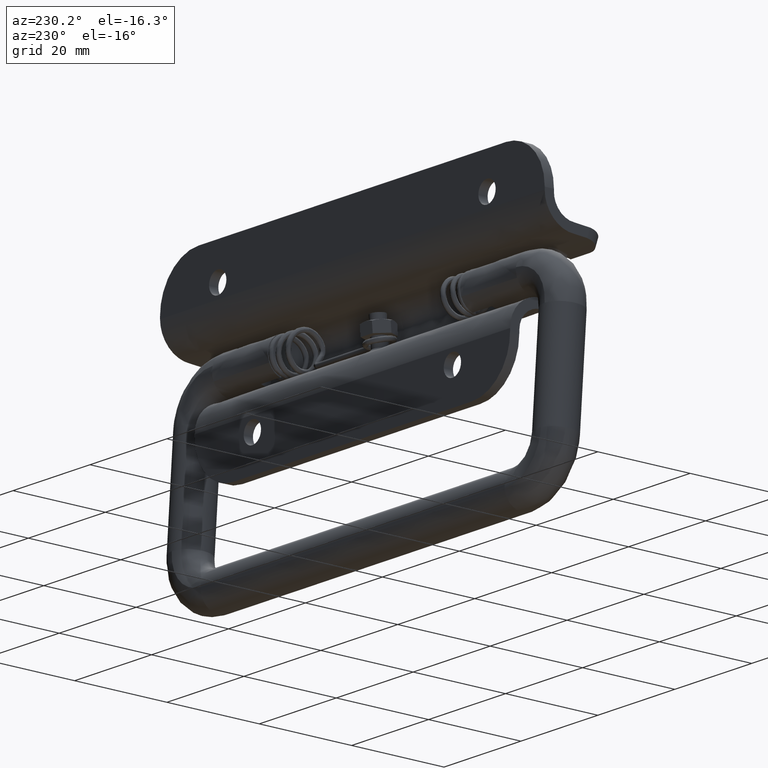
[diagram: clean part render]
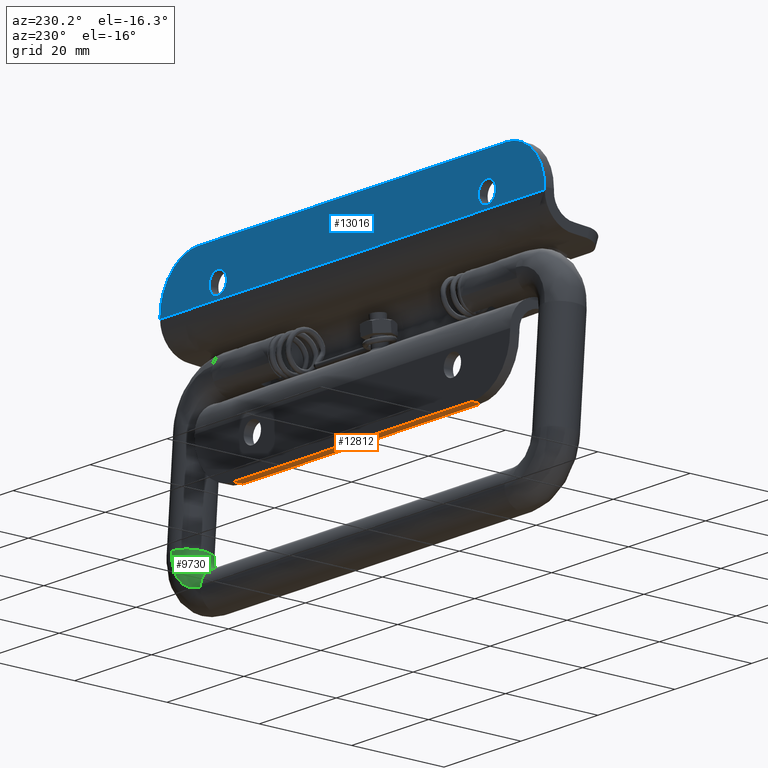
[diagram: same view with three faces highlighted in distinct colors, each labeled with its STEP entity id]
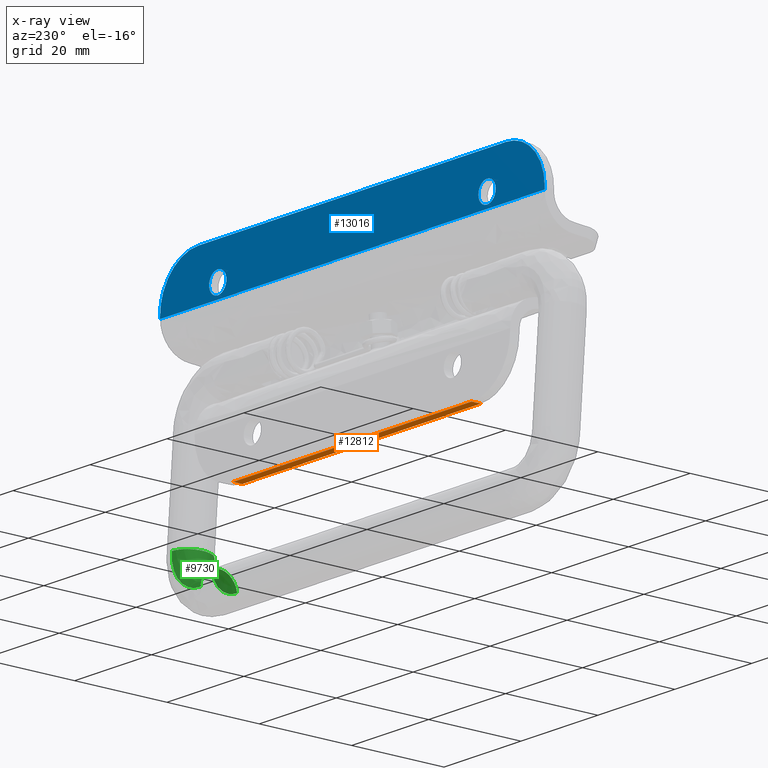
[diagram: x-ray of the same camera — body ghosted, the three highlighted faces saturated]
A machine part, auxiliary view with three faces highlighted in distinct colors.
The next image is the same camera in x-ray (body ghosted, the three faces saturated) — at least one of them is partly hidden behind the body in this view.
Their STEP definitions:

[orange] entity #12812 — the highlighted face is a freeform B-spline surface patch.
#12350=CARTESIAN_POINT('',(-31.0,6.500000000000000,-21.500000000000000));
#12351=VERTEX_POINT('',#12350);
#12368=CARTESIAN_POINT('',(-31.0,4.500000000000000,-21.500000000000000));
#12369=VERTEX_POINT('',#12368);
#12370=CARTESIAN_POINT('',(-31.0,4.500000000000000,-21.500000000000000));
#12371=CARTESIAN_POINT('',(-31.0,6.500000000000000,-21.500000000000000));
#12372=QUASI_UNIFORM_CURVE('',1,(#12370,#12371),.UNSPECIFIED.,.F.,.U.);
#12373=EDGE_CURVE('',#12369,#12351,#12372,.T.);
#12416=CARTESIAN_POINT('',(31.0,6.500000000000000,-21.500000000000000));
#12417=VERTEX_POINT('',#12416);
#12440=CARTESIAN_POINT('',(31.0,4.500000000000000,-21.500000000000000));
#12441=VERTEX_POINT('',#12440);
#12457=CARTESIAN_POINT('',(31.0,6.500000000000000,-21.500000000000000));
#12458=CARTESIAN_POINT('',(31.0,4.500000000000000,-21.500000000000000));
#12459=QUASI_UNIFORM_CURVE('',1,(#12457,#12458),.UNSPECIFIED.,.F.,.U.);
#12460=EDGE_CURVE('',#12417,#12441,#12459,.T.);
#12793=CARTESIAN_POINT('',(34.096899879831980,4.400100003876387,-21.500000000000000));
#12794=CARTESIAN_POINT('',(-34.096901542801561,4.400100003876387,-21.500000000000000));
#12795=CARTESIAN_POINT('',(34.096899879831980,6.599900049767793,-21.500000000000000));
#12796=CARTESIAN_POINT('',(-34.096901542801561,6.599900049767793,-21.500000000000000));
#12797=B_SPLINE_SURFACE_WITH_KNOTS('',1,1,((#12793,#12795),(#12794,#12796)),.UNSPECIFIED.,.F.,.F.,.U.,(2,2),(2,2),(0.0,68.193801422633541),(0.0,2.199800045891406),.UNSPECIFIED.);
#12798=CARTESIAN_POINT('',(31.0,6.500000000000000,-21.500000000000000));
#12799=CARTESIAN_POINT('',(-31.0,6.500000000000000,-21.500000000000000));
#12800=QUASI_UNIFORM_CURVE('',1,(#12798,#12799),.UNSPECIFIED.,.F.,.U.);
#12801=EDGE_CURVE('',#12417,#12351,#12800,.T.);
#12802=ORIENTED_EDGE('',*,*,#12801,.F.);
#12803=ORIENTED_EDGE('',*,*,#12460,.T.);
#12804=CARTESIAN_POINT('',(31.0,4.500000000000000,-21.500000000000000));
#12805=CARTESIAN_POINT('',(-31.0,4.500000000000000,-21.500000000000000));
#12806=QUASI_UNIFORM_CURVE('',1,(#12804,#12805),.UNSPECIFIED.,.F.,.U.);
#12807=EDGE_CURVE('',#12441,#12369,#12806,.T.);
#12808=ORIENTED_EDGE('',*,*,#12807,.T.);
#12809=ORIENTED_EDGE('',*,*,#12373,.T.);
#12810=EDGE_LOOP('',(#12802,#12803,#12808,#12809));
#12811=FACE_OUTER_BOUND('',#12810,.T.);
#12812=ADVANCED_FACE('',(#12811),#12797,.T.);

[blue] entity #13016 — the highlighted face is a freeform B-spline surface patch.
#10268=CARTESIAN_POINT('',(-37.249999999998977,6.500000000000000,13.999997851253701));
#10269=VERTEX_POINT('',#10268);
#10270=CARTESIAN_POINT('',(-36.604813806897262,6.499999999977687,12.422953690545830));
#10271=VERTEX_POINT('',#10270);
#10272=CARTESIAN_POINT('',(-37.249999999998977,6.500000000000000,13.999997851253701));
#10273=CARTESIAN_POINT('',(-37.250364583297817,6.499999999995612,13.690489796074379));
#10274=CARTESIAN_POINT('',(-37.127782910108749,6.499999999987398,13.108345913991901));
#10275=CARTESIAN_POINT('',(-36.796378487428811,6.499999999980424,12.617571179575110));
#10276=CARTESIAN_POINT('',(-36.604813806897262,6.499999999977687,12.422953690545830));
#10277=B_SPLINE_CURVE_WITH_KNOTS('',3,(#10272,#10273,#10274,#10275,#10276),.UNSPECIFIED.,.F.,.U.,(4,1,4),(0.000000053254912,0.928373834280422,1.747551979831418),.UNSPECIFIED.);
#10278=EDGE_CURVE('',#10269,#10271,#10277,.T.);
#10280=CARTESIAN_POINT('',(-35.0,6.500000000000000,16.250000000000000));
#10281=VERTEX_POINT('',#10280);
#10282=CARTESIAN_POINT('',(-35.0,6.500000000000000,16.250000000000000));
#10283=CARTESIAN_POINT('',(-35.165663422544633,6.500000000000000,16.250021545507138));
#10284=CARTESIAN_POINT('',(-35.515413397494562,6.500000000000007,16.211229864171941));
#10285=CARTESIAN_POINT('',(-35.986897391934242,6.499999999999994,16.042517304617469));
#10286=CARTESIAN_POINT('',(-36.424473766526788,6.500000000000011,15.765445651444150));
#10287=CARTESIAN_POINT('',(-36.765436125571462,6.499999999999983,15.424459345178850));
#10288=CARTESIAN_POINT('',(-37.022714662739268,6.500000000000041,15.018152748763370));
#10289=CARTESIAN_POINT('',(-37.202446617819348,6.499999999999949,14.552191058105430));
#10290=CARTESIAN_POINT('',(-37.250076081465977,6.500000000000055,14.202488877962439));
#10291=CARTESIAN_POINT('',(-37.249999999998977,6.500000000000000,13.999997851253701));
#10292=B_SPLINE_CURVE_WITH_KNOTS('',3,(#10282,#10283,#10284,#10285,#10286,#10287,#10288,#10289,#10290,#10291),.UNSPECIFIED.,.F.,.U.,(4,1,1,1,1,1,1,4),(0.000000155749071,0.497002490036952,1.049270988714094,1.491093769274116,2.043288648692378,2.485111981150826,2.926922866901140,3.534381635859738),.UNSPECIFIED.);
#10293=EDGE_CURVE('',#10281,#10269,#10292,.T.);
#10295=CARTESIAN_POINT('',(-32.750000000001023,6.500000000000000,14.000002148746310));
#10296=VERTEX_POINT('',#10295);
#10297=CARTESIAN_POINT('',(-32.750000000001023,6.500000000000000,14.000002148746310));
#10298=CARTESIAN_POINT('',(-32.749742244456911,6.500000000000003,14.276171816966560));
#10299=CARTESIAN_POINT('',(-32.815193663929321,6.499999999999999,14.625726465943091));
#10300=CARTESIAN_POINT('',(-33.046721137913032,6.499999999999990,15.148076192893249));
#10301=CARTESIAN_POINT('',(-33.368075753676663,6.500000000000036,15.604566524218511));
#10302=CARTESIAN_POINT('',(-33.908256935899772,6.499999999999907,16.005172203956519));
#10303=CARTESIAN_POINT('',(-34.484602417667112,6.500000000000115,16.211204364411909));
#10304=CARTESIAN_POINT('',(-34.834337569555352,6.499999999999882,16.250022233546758));
#10305=CARTESIAN_POINT('',(-35.0,6.500000000000000,16.250000000000000));
#10306=B_SPLINE_CURVE_WITH_KNOTS('',3,(#10297,#10298,#10299,#10300,#10301,#10302,#10303,#10304,#10305),.UNSPECIFIED.,.F.,.U.,(4,1,1,1,1,1,4),(0.000000158690603,0.828367330019639,1.049270271275451,1.711985019432973,2.485110277667932,3.037376489980546,3.534379213661419),.UNSPECIFIED.);
#10307=EDGE_CURVE('',#10296,#10281,#10306,.T.);
#10309=CARTESIAN_POINT('',(-33.422954440143400,6.500000000022554,12.395186962551440));
#10310=VERTEX_POINT('',#10309);
#10311=CARTESIAN_POINT('',(-33.422954440143400,6.500000000022554,12.395186962551440));
#10312=CARTESIAN_POINT('',(-33.196912762544301,6.500000000019427,12.616695165837140));
#10313=CARTESIAN_POINT('',(-32.862380371861839,6.500000000012307,13.125409772167210));
#10314=CARTESIAN_POINT('',(-32.749744089929742,6.500000000003919,13.720776667229840));
#10315=CARTESIAN_POINT('',(-32.750000000001023,6.500000000000000,14.000002148746310));
#10316=B_SPLINE_CURVE_WITH_KNOTS('',3,(#10311,#10312,#10313,#10314,#10315),.UNSPECIFIED.,.F.,.U.,(4,1,4),(0.000000041572078,0.949244018298996,1.786828467575215),.UNSPECIFIED.);
#10317=EDGE_CURVE('',#10310,#10296,#10316,.T.);
#10396=CARTESIAN_POINT('',(-35.0,6.500000000000000,11.750000000000000));
#10397=VERTEX_POINT('',#10396);
#10398=CARTESIAN_POINT('',(-36.604813806897262,6.499999999977687,12.422953690545830));
#10399=CARTESIAN_POINT('',(-36.435293799372197,6.499999999980051,12.250287065383709));
#10400=CARTESIAN_POINT('',(-36.085493245876648,6.499999999984893,11.993943587515419));
#10401=CARTESIAN_POINT('',(-35.521132746349132,6.499999999992771,11.789658271819860));
#10402=CARTESIAN_POINT('',(-35.167512067667822,6.499999999997665,11.749975116914881));
#10403=CARTESIAN_POINT('',(-35.0,6.500000000000000,11.750000000000000));
#10404=B_SPLINE_CURVE_WITH_KNOTS('',3,(#10398,#10399,#10400,#10401,#10402,#10403),.UNSPECIFIED.,.F.,.U.,(4,1,1,4),(0.000000041520062,0.725911725838444,1.284280824696558,1.786826749866274),.UNSPECIFIED.);
#10405=EDGE_CURVE('',#10271,#10397,#10404,.T.);
#10427=CARTESIAN_POINT('',(-35.0,6.500000000000000,11.750000000000000));
#10428=CARTESIAN_POINT('',(-34.799762865021293,6.500000000002866,11.749953852493620));
#10429=CARTESIAN_POINT('',(-34.381095042113493,6.500000000008858,11.806209351427770));
#10430=CARTESIAN_POINT('',(-33.841811489706579,6.500000000016544,12.042267714349940));
#10431=CARTESIAN_POINT('',(-33.539794569083760,6.500000000020891,12.280349384003850));
#10432=CARTESIAN_POINT('',(-33.422954440143400,6.500000000022554,12.395186962551440));
#10433=B_SPLINE_CURVE_WITH_KNOTS('',3,(#10427,#10428,#10429,#10430,#10431,#10432),.UNSPECIFIED.,.F.,.U.,(4,1,1,4),(0.000000053205931,0.600723739127184,1.256051204868407,1.747553716235217),.UNSPECIFIED.);
#10434=EDGE_CURVE('',#10397,#10310,#10433,.T.);
#10842=CARTESIAN_POINT('',(32.750000000001030,6.500000000000000,13.999997851253701));
#10843=VERTEX_POINT('',#10842);
#10844=CARTESIAN_POINT('',(33.395186193102752,6.499999999977687,12.422953690545830));
#10845=VERTEX_POINT('',#10844);
#10846=CARTESIAN_POINT('',(32.750000000001030,6.500000000000000,13.999997851253701));
#10847=CARTESIAN_POINT('',(32.749595434420058,6.499999999995615,13.690481200643260));
#10848=CARTESIAN_POINT('',(32.872263025189369,6.499999999987393,13.108357875335610));
#10849=CARTESIAN_POINT('',(33.203610489245840,6.499999999980439,12.617569422752659));
#10850=CARTESIAN_POINT('',(33.395186193102752,6.499999999977687,12.422953690545830));
#10851=B_SPLINE_CURVE_WITH_KNOTS('',3,(#10846,#10847,#10848,#10849,#10850),.UNSPECIFIED.,.F.,.U.,(4,1,4),(0.000000053253909,0.928373834280185,1.747551979831404),.UNSPECIFIED.);
#10852=EDGE_CURVE('',#10843,#10845,#10851,.T.);
#10854=CARTESIAN_POINT('',(35.0,6.500000000000000,16.250000000000000));
#10855=VERTEX_POINT('',#10854);
#10856=CARTESIAN_POINT('',(35.0,6.500000000000000,16.250000000000000));
#10857=CARTESIAN_POINT('',(34.760675951794141,6.499999999999997,16.250146730105779));
#10858=CARTESIAN_POINT('',(34.374217705038042,6.499999999999993,16.187697446697790));
#10859=CARTESIAN_POINT('',(33.849979031971600,6.500000000000001,15.955347071543020));
#10860=CARTESIAN_POINT('',(33.462696023177521,6.500000000000004,15.668068897036280));
#10861=CARTESIAN_POINT('',(33.075947134429150,6.500000000000034,15.219939013649650));
#10862=CARTESIAN_POINT('',(32.812403312133249,6.499999999999926,14.662713590736921));
#10863=CARTESIAN_POINT('',(32.749971458992320,6.500000000000058,14.202468903881639));
#10864=CARTESIAN_POINT('',(32.750000000001030,6.500000000000000,13.999997851253701));
#10865=B_SPLINE_CURVE_WITH_KNOTS('',3,(#10856,#10857,#10858,#10859,#10860,#10861,#10862,#10863,#10864),.UNSPECIFIED.,.F.,.U.,(4,1,1,1,1,1,4),(0.000000155745077,0.717919609051945,1.159732754800445,1.711986187062321,2.153760714997246,2.926922866900457,3.534381635859733),.UNSPECIFIED.);
#10866=EDGE_CURVE('',#10855,#10843,#10865,.T.);
#10868=CARTESIAN_POINT('',(37.249999999998977,6.500000000000001,14.000002148746299));
#10869=VERTEX_POINT('',#10868);
#10870=CARTESIAN_POINT('',(37.249999999998977,6.500000000000001,14.000002148746299));
#10871=CARTESIAN_POINT('',(37.250145664735250,6.500000000000005,14.239325847489891));
#10872=CARTESIAN_POINT('',(37.187699411513542,6.499999999999996,14.625785003248460));
#10873=CARTESIAN_POINT('',(36.955335911895773,6.500000000000002,15.150005953416191));
#10874=CARTESIAN_POINT('',(36.601862928683957,6.499999999999992,15.626809573129171));
#10875=CARTESIAN_POINT('',(36.121779222609867,6.500000000000033,15.982913237704290));
#10876=CARTESIAN_POINT('',(35.552180902704059,6.499999999999981,16.202429787575159));
#10877=CARTESIAN_POINT('',(35.202488728135883,6.499999999999996,16.250072690756632));
#10878=CARTESIAN_POINT('',(35.0,6.500000000000000,16.250000000000000));
#10879=B_SPLINE_CURVE_WITH_KNOTS('',3,(#10870,#10871,#10872,#10873,#10874,#10875,#10876,#10877,#10878),.UNSPECIFIED.,.F.,.U.,(4,1,1,1,1,1,4),(0.000000158690459,0.717919119734019,1.159731962199690,1.711985019432176,2.485110277667397,2.926920859590775,3.534379213661425),.UNSPECIFIED.);
#10880=EDGE_CURVE('',#10869,#10855,#10879,.T.);
#10882=CARTESIAN_POINT('',(36.577045559856600,6.500000000022554,12.395186962551429));
#10883=VERTEX_POINT('',#10882);
#10884=CARTESIAN_POINT('',(36.577045559856600,6.500000000022554,12.395186962551429));
#10885=CARTESIAN_POINT('',(36.803087816146579,6.500000000019450,12.616694654873100));
#10886=CARTESIAN_POINT('',(37.137617901837459,6.500000000012279,13.125410400969990));
#10887=CARTESIAN_POINT('',(37.250257348965341,6.500000000003938,13.720776142592170));
#10888=CARTESIAN_POINT('',(37.249999999998977,6.500000000000001,14.000002148746299));
#10889=B_SPLINE_CURVE_WITH_KNOTS('',3,(#10884,#10885,#10886,#10887,#10888),.UNSPECIFIED.,.F.,.U.,(4,1,4),(0.000000041572545,0.949244018299100,1.786828467575225),.UNSPECIFIED.);
#10890=EDGE_CURVE('',#10883,#10869,#10889,.T.);
#10970=CARTESIAN_POINT('',(35.0,6.500000000000000,11.750000000000000));
#10971=VERTEX_POINT('',#10970);
#10972=CARTESIAN_POINT('',(33.395186193102752,6.499999999977687,12.422953690545830));
#10973=CARTESIAN_POINT('',(33.590715947046967,6.499999999980419,12.223617336752151));
#10974=CARTESIAN_POINT('',(34.088350935237571,6.499999999987312,11.877919355837340));
#10975=CARTESIAN_POINT('',(34.683518666178692,6.499999999995604,11.749556286572631));
#10976=CARTESIAN_POINT('',(35.0,6.500000000000000,11.750000000000000));
#10977=B_SPLINE_CURVE_WITH_KNOTS('',3,(#10972,#10973,#10974,#10975,#10976),.UNSPECIFIED.,.F.,.U.,(4,1,4),(0.000000041519101,0.837583685615938,1.786826749866270),.UNSPECIFIED.);
#10978=EDGE_CURVE('',#10845,#10971,#10977,.T.);
#11001=CARTESIAN_POINT('',(35.0,6.500000000000000,11.750000000000000));
#11002=CARTESIAN_POINT('',(35.273081708872311,6.500000000003904,11.749773873036959));
#11003=CARTESIAN_POINT('',(35.855409123602932,6.500000000012249,11.857393869694301));
#11004=CARTESIAN_POINT('',(36.356545880138242,6.500000000019393,12.177985900697569));
#11005=CARTESIAN_POINT('',(36.577045559856600,6.500000000022554,12.395186962551429));
#11006=B_SPLINE_CURVE_WITH_KNOTS('',3,(#11001,#11002,#11003,#11004,#11005),.UNSPECIFIED.,.F.,.U.,(4,1,4),(0.000000053204332,0.819179012763056,1.747553716235217),.UNSPECIFIED.);
#11007=EDGE_CURVE('',#10971,#10883,#11006,.T.);
#12219=CARTESIAN_POINT('',(40.0,6.500000000000000,21.500000000000000));
#12220=VERTEX_POINT('',#12219);
#12221=CARTESIAN_POINT('',(50.0,6.500000000000000,11.500000000000000));
#12222=VERTEX_POINT('',#12221);
#12223=CARTESIAN_POINT('',(40.0,6.500000000000000,21.500000000000000));
#12224=CARTESIAN_POINT('',(40.654503624958792,6.500000000000003,21.500079601876159));
#12225=CARTESIAN_POINT('',(41.718024485775437,6.499999999999988,21.395192323451919));
#12226=CARTESIAN_POINT('',(43.382504832958347,6.500000000000025,20.956525636159881));
#12227=CARTESIAN_POINT('',(44.848021248493268,6.499999999999959,20.306929841318212));
#12228=CARTESIAN_POINT('',(46.241166629868658,6.500000000000020,19.363563112960570));
#12229=CARTESIAN_POINT('',(47.292951857014657,6.499999999999973,18.386500839417970));
#12230=CARTESIAN_POINT('',(48.176934473212881,6.500000000000022,17.309362310777018));
#12231=CARTESIAN_POINT('',(48.865493888330697,6.499999999999984,16.191911751001129));
#12232=CARTESIAN_POINT('',(49.463413437566189,6.500000000000043,14.843075749757711));
#12233=CARTESIAN_POINT('',(49.890484635816257,6.499999999999883,13.299848019285720));
#12234=CARTESIAN_POINT('',(50.000060743327332,6.500000000000129,12.113589199612511));
#12235=CARTESIAN_POINT('',(50.0,6.500000000000000,11.500000000000000));
#12236=B_SPLINE_CURVE_WITH_KNOTS('',3,(#12223,#12224,#12225,#12226,#12227,#12228,#12229,#12230,#12231,#12232,#12233,#12234,#12235),.UNSPECIFIED.,.F.,.U.,(4,1,1,1,1,1,1,1,1,1,4),(0.000000061683011,1.963505245201617,3.190692648377235,5.154222782670374,6.749561106441503,8.222151530387238,9.449351898033669,10.922009436796300,12.149208541477289,13.867293490295550,15.708061828752410),.UNSPECIFIED.);
#12237=EDGE_CURVE('',#12220,#12222,#12236,.T.);
#12285=CARTESIAN_POINT('',(-50.0,6.500000000000000,11.500000000000000));
#12286=VERTEX_POINT('',#12285);
#12287=CARTESIAN_POINT('',(-40.0,6.500000000000000,21.500000000000000));
#12288=VERTEX_POINT('',#12287);
#12289=CARTESIAN_POINT('',(-50.0,6.500000000000000,11.500000000000000));
#12290=CARTESIAN_POINT('',(-50.000081128188441,6.499999999999998,12.154504172311340));
#12291=CARTESIAN_POINT('',(-49.895189538891159,6.500000000000004,13.218023418916029));
#12292=CARTESIAN_POINT('',(-49.456527432929931,6.500000000000021,14.882505434823891));
#12293=CARTESIAN_POINT('',(-48.806929338773358,6.499999999999960,16.348021074249878));
#12294=CARTESIAN_POINT('',(-47.863560548517107,6.500000000000028,17.741164338558750));
#12295=CARTESIAN_POINT('',(-46.774842422556077,6.499999999999958,18.913177801453902));
#12296=CARTESIAN_POINT('',(-45.350718228696202,6.500000000000072,20.024682706352628));
#12297=CARTESIAN_POINT('',(-43.659693851266233,6.499999999999943,20.875927766997741));
#12298=CARTESIAN_POINT('',(-41.799835733737368,6.500000000000013,21.390459073517128));
#12299=CARTESIAN_POINT('',(-40.613589624257251,6.499999999999987,21.500061672829769));
#12300=CARTESIAN_POINT('',(-40.0,6.500000000000000,21.500000000000000));
#12301=B_SPLINE_CURVE_WITH_KNOTS('',3,(#12289,#12290,#12291,#12292,#12293,#12294,#12295,#12296,#12297,#12298,#12299,#12300),.UNSPECIFIED.,.F.,.U.,(4,1,1,1,1,1,1,1,1,4),(0.000000061683398,1.963505245203306,3.190692648379130,5.154222782672232,6.749561106442920,8.222151530388377,9.940256937007222,12.149208541478091,13.867293490296211,15.708061828752280),.UNSPECIFIED.);
#12302=EDGE_CURVE('',#12286,#12288,#12301,.T.);
#12525=CARTESIAN_POINT('',(-50.0,6.499999999986300,10.999999999999799));
#12526=VERTEX_POINT('',#12525);
#12527=CARTESIAN_POINT('',(-50.0,6.499999999986300,10.999999999999799));
#12528=CARTESIAN_POINT('',(-50.0,6.500000000000000,11.500000000000000));
#12529=QUASI_UNIFORM_CURVE('',1,(#12527,#12528),.UNSPECIFIED.,.F.,.U.);
#12530=EDGE_CURVE('',#12526,#12286,#12529,.T.);
#12653=CARTESIAN_POINT('',(50.0,6.499999999986300,10.999999999999799));
#12654=VERTEX_POINT('',#12653);
#12669=CARTESIAN_POINT('',(50.0,6.499999999986300,10.999999999999799));
#12670=CARTESIAN_POINT('',(50.0,6.500000000000000,11.500000000000000));
#12671=QUASI_UNIFORM_CURVE('',1,(#12669,#12670),.UNSPECIFIED.,.F.,.U.);
#12672=EDGE_CURVE('',#12654,#12222,#12671,.T.);
#12834=CARTESIAN_POINT('',(50.0,6.499999999986300,10.999999999999799));
#12835=CARTESIAN_POINT('',(-50.0,6.499999999986300,10.999999999999799));
#12836=QUASI_UNIFORM_CURVE('',1,(#12834,#12835),.UNSPECIFIED.,.F.,.U.);
#12837=EDGE_CURVE('',#12654,#12526,#12836,.T.);
#12849=CARTESIAN_POINT('',(40.0,6.500000000000000,21.500000000000000));
#12850=CARTESIAN_POINT('',(-40.0,6.500000000000000,21.500000000000000));
#12851=QUASI_UNIFORM_CURVE('',1,(#12849,#12850),.UNSPECIFIED.,.F.,.U.);
#12852=EDGE_CURVE('',#12220,#12288,#12851,.T.);
#12987=CARTESIAN_POINT('',(-54.994999806180601,6.500000000000000,10.475525020350830));
#12988=CARTESIAN_POINT('',(-54.994999806180601,6.500000000000000,22.024475261280919));
#12989=CARTESIAN_POINT('',(54.995002488389623,6.500000000000000,10.475525020350830));
#12990=CARTESIAN_POINT('',(54.995002488389623,6.500000000000000,22.024475261280919));
#12991=B_SPLINE_SURFACE_WITH_KNOTS('',1,1,((#12987,#12989),(#12988,#12990)),.UNSPECIFIED.,.F.,.F.,.U.,(2,2),(2,2),(0.0,11.548950240930090),(0.0,109.990002294570200),.UNSPECIFIED.);
#12992=ORIENTED_EDGE('',*,*,#12530,.T.);
#12993=ORIENTED_EDGE('',*,*,#12302,.T.);
#12994=ORIENTED_EDGE('',*,*,#12852,.F.);
#12995=ORIENTED_EDGE('',*,*,#12237,.T.);
#12996=ORIENTED_EDGE('',*,*,#12672,.F.);
#12997=ORIENTED_EDGE('',*,*,#12837,.T.);
#12998=EDGE_LOOP('',(#12992,#12993,#12994,#12995,#12996,#12997));
#12999=FACE_OUTER_BOUND('',#12998,.T.);
#13000=ORIENTED_EDGE('',*,*,#10866,.T.);
#13001=ORIENTED_EDGE('',*,*,#10852,.T.);
#13002=ORIENTED_EDGE('',*,*,#10978,.T.);
#13003=ORIENTED_EDGE('',*,*,#11007,.T.);
#13004=ORIENTED_EDGE('',*,*,#10890,.T.);
#13005=ORIENTED_EDGE('',*,*,#10880,.T.);
#13006=EDGE_LOOP('',(#13000,#13001,#13002,#13003,#13004,#13005));
#13007=FACE_BOUND('',#13006,.T.);
#13008=ORIENTED_EDGE('',*,*,#10293,.T.);
#13009=ORIENTED_EDGE('',*,*,#10278,.T.);
#13010=ORIENTED_EDGE('',*,*,#10405,.T.);
#13011=ORIENTED_EDGE('',*,*,#10434,.T.);
#13012=ORIENTED_EDGE('',*,*,#10317,.T.);
#13013=ORIENTED_EDGE('',*,*,#10307,.T.);
#13014=EDGE_LOOP('',(#13008,#13009,#13010,#13011,#13012,#13013));
#13015=FACE_BOUND('',#13014,.T.);
#13016=ADVANCED_FACE('',(#12999,#13007,#13015),#12991,.T.);

[green] entity #9730 — the highlighted face is a freeform B-spline surface patch.
#8564=CARTESIAN_POINT('',(39.500000000285127,-1.463747502757801,-37.380401269643912));
#8565=VERTEX_POINT('',#8564);
#8576=CARTESIAN_POINT('',(39.500000000001499,1.974826369065598,-33.952326085727137));
#8577=VERTEX_POINT('',#8576);
#8578=CARTESIAN_POINT('',(39.500000000001499,1.974826369065598,-33.952326085727137));
#8579=CARTESIAN_POINT('',(39.500000000001457,1.705434928583299,-33.987983092491568));
#8580=CARTESIAN_POINT('',(39.500000000007667,1.094182925491085,-34.133370011822883));
#8581=CARTESIAN_POINT('',(39.500000000034667,0.335740682669817,-34.516686724909761));
#8582=CARTESIAN_POINT('',(39.500000000077101,-0.320412331408411,-35.049521219535762));
#8583=CARTESIAN_POINT('',(39.500000000122981,-0.780863851355571,-35.590234361477002));
#8584=CARTESIAN_POINT('',(39.500000000191662,-1.229508060716558,-36.370173657312478));
#8585=CARTESIAN_POINT('',(39.500000000247347,-1.409203222509885,-36.976412579746643));
#8586=CARTESIAN_POINT('',(39.500000000285127,-1.463747502757801,-37.380401269643912));
#8587=B_SPLINE_CURVE_WITH_KNOTS('',3,(#8578,#8579,#8580,#8581,#8582,#8583,#8584,#8585,#8586),.UNSPECIFIED.,.F.,.U.,(4,1,1,1,1,1,4),(0.000000047183135,0.815247254279534,1.875110645062605,2.527305620127557,3.342540905817488,3.994764947798152,5.217651537397158),.UNSPECIFIED.);
#8588=EDGE_CURVE('',#8577,#8565,#8587,.T.);
#8590=CARTESIAN_POINT('',(39.500000000027349,5.276406435443406,-35.038190002778883));
#8591=VERTEX_POINT('',#8590);
#8592=CARTESIAN_POINT('',(39.500000000027349,5.276406435443406,-35.038190002778883));
#8593=CARTESIAN_POINT('',(39.500000000008477,5.033817096953167,-34.804159037229176));
#8594=CARTESIAN_POINT('',(39.499999999983160,4.564646461900410,-34.454468152188227));
#8595=CARTESIAN_POINT('',(39.499999999968558,3.878792532853526,-34.145691160290987));
#8596=CARTESIAN_POINT('',(39.499999999967180,3.046621934884933,-33.916568548467659));
#8597=CARTESIAN_POINT('',(39.499999999982137,2.420374948979677,-33.892987932353037));
#8598=CARTESIAN_POINT('',(39.500000000001499,1.974826369065598,-33.952326085727137));
#8599=B_SPLINE_CURVE_WITH_KNOTS('',3,(#8592,#8593,#8594,#8595,#8596,#8597,#8598),.UNSPECIFIED.,.F.,.U.,(4,1,1,1,4),(0.000000048344292,1.011211280485917,1.741546611944227,2.247120044926416,3.595407769198824),.UNSPECIFIED.);
#8600=EDGE_CURVE('',#8591,#8577,#8599,.T.);
#8690=CARTESIAN_POINT('',(39.500000000292630,6.496688691375723,-37.754927798345683));
#8691=VERTEX_POINT('',#8690);
#8692=CARTESIAN_POINT('',(39.500000000292630,6.496688691375723,-37.754927798345683));
#8693=CARTESIAN_POINT('',(39.500000000261331,6.485098454023584,-37.469061559905398));
#8694=CARTESIAN_POINT('',(39.500000000206043,6.407204816310738,-36.947336016508856));
#8695=CARTESIAN_POINT('',(39.500000000109623,6.062271881423480,-35.985995444406697));
#8696=CARTESIAN_POINT('',(39.500000000055010,5.631457040280438,-35.379940479423119));
#8697=CARTESIAN_POINT('',(39.500000000027349,5.276406435443406,-35.038190002778883));
#8698=B_SPLINE_CURVE_WITH_KNOTS('',3,(#8692,#8693,#8694,#8695,#8696,#8697),.UNSPECIFIED.,.F.,.U.,(4,1,1,4),(0.000000031099610,0.858293476481284,1.573515353583697,3.051704177177531),.UNSPECIFIED.);
#8699=EDGE_CURVE('',#8691,#8591,#8698,.T.);
#8747=CARTESIAN_POINT('',(47.600520381354237,5.963759668500638,-29.671956988336468));
#8748=VERTEX_POINT('',#8747);
#8749=CARTESIAN_POINT('',(44.809386595065540,4.927104652739009,-29.740306059125690));
#8750=VERTEX_POINT('',#8749);
#8751=CARTESIAN_POINT('',(47.600520381354237,5.963759668500638,-29.671956988336468));
#8752=CARTESIAN_POINT('',(47.282732349829573,5.971795566546348,-29.671427162921351));
#8753=CARTESIAN_POINT('',(46.661218955647279,5.913183504705609,-29.675291592157251));
#8754=CARTESIAN_POINT('',(45.691526731218381,5.585550711568540,-29.696893182491671));
#8755=CARTESIAN_POINT('',(45.103302913295508,5.193958054618054,-29.722711795083860));
#8756=CARTESIAN_POINT('',(44.809386595065540,4.927104652739009,-29.740306059125690));
#8757=B_SPLINE_CURVE_WITH_KNOTS('',3,(#8751,#8752,#8753,#8754,#8755,#8756),.UNSPECIFIED.,.F.,.U.,(4,1,1,4),(0.000000031099294,0.953659173011178,1.859629749571366,3.051704176479266),.UNSPECIFIED.);
#8758=EDGE_CURVE('',#8748,#8750,#8757,.T.);
#8857=CARTESIAN_POINT('',(43.508665939218972,1.711098321812476,-29.952344819600551));
#8858=VERTEX_POINT('',#8857);
#8859=CARTESIAN_POINT('',(44.809386595065540,4.927104652739009,-29.740306059125690));
#8860=CARTESIAN_POINT('',(44.587645400519740,4.726040670320055,-29.753562674072580));
#8861=CARTESIAN_POINT('',(44.202211272167837,4.288004843520477,-29.782443392635301));
#8862=CARTESIAN_POINT('',(43.811942670629257,3.580120828498605,-29.829115828461291));
#8863=CARTESIAN_POINT('',(43.533832418539077,2.723857808611246,-29.885571236411739));
#8864=CARTESIAN_POINT('',(43.482636810686863,2.102653728432934,-29.926528662991760));
#8865=CARTESIAN_POINT('',(43.508665939218972,1.711098321812476,-29.952344819600551));
#8866=B_SPLINE_CURVE_WITH_KNOTS('',3,(#8859,#8860,#8861,#8862,#8863,#8864,#8865),.UNSPECIFIED.,.F.,.U.,(4,1,1,1,4),(0.000000048346730,0.898852605045588,1.741546611944928,2.415659148330752,3.595407769197546),.UNSPECIFIED.);
#8867=EDGE_CURVE('',#8750,#8858,#8866,.T.);
#8869=CARTESIAN_POINT('',(46.703092298683721,-1.937635198812671,-30.192914287953439));
#8870=VERTEX_POINT('',#8869);
#8871=CARTESIAN_POINT('',(43.508665939218972,1.711098321812476,-29.952344819600551));
#8872=CARTESIAN_POINT('',(43.540415075898693,1.223955615414663,-29.984463268699820));
#8873=CARTESIAN_POINT('',(43.725154188421833,0.502746087308894,-30.032014286533538));
#8874=CARTESIAN_POINT('',(44.258119423028702,-0.416539327951784,-30.092624907271770));
#8875=CARTESIAN_POINT('',(44.792538423803322,-1.002417565084476,-30.131253219049121));
#8876=CARTESIAN_POINT('',(45.608553021457467,-1.594335864051801,-30.170279766126431));
#8877=CARTESIAN_POINT('',(46.250244972797567,-1.846144439326353,-30.186882089856709));
#8878=CARTESIAN_POINT('',(46.703092298683721,-1.937635198812671,-30.192914287953439));
#8879=B_SPLINE_CURVE_WITH_KNOTS('',3,(#8871,#8872,#8873,#8874,#8875,#8876,#8877,#8878),.UNSPECIFIED.,.F.,.U.,(4,1,1,1,1,4),(0.000000047185138,1.467468026392293,2.201215877469967,3.179485444375838,3.831712389807876,5.217651537562101),.UNSPECIFIED.);
#8880=EDGE_CURVE('',#8858,#8870,#8879,.T.);
#9657=CARTESIAN_POINT('',(47.600520381354237,5.963759668500638,-29.671956988336468));
#9658=CARTESIAN_POINT('',(47.600547573400043,5.994279715977974,-30.134856628390938));
#9659=CARTESIAN_POINT('',(47.512083145156588,6.061859390244737,-31.159842153609990));
#9660=CARTESIAN_POINT('',(47.076176073396020,6.163087047357870,-32.695168927818990));
#9661=CARTESIAN_POINT('',(46.253364430800808,6.265874993185516,-34.254160707321702));
#9662=CARTESIAN_POINT('',(45.214857908532771,6.346068484756259,-35.470460859292110));
#9663=CARTESIAN_POINT('',(43.995576737599052,6.410263315144554,-36.444108226799912));
#9664=CARTESIAN_POINT('',(42.857962574085860,6.451457350105510,-37.068900962532389));
#9665=CARTESIAN_POINT('',(41.322355349376629,6.486906819362547,-37.606565478761311));
#9666=CARTESIAN_POINT('',(40.229027467273362,6.496706857299805,-37.755203322108180));
#9667=CARTESIAN_POINT('',(39.500000000292630,6.496688691375723,-37.754927798345683));
#9668=B_SPLINE_CURVE_WITH_KNOTS('',3,(#9657,#9658,#9659,#9660,#9661,#9662,#9663,#9664,#9665,#9666,#9667),.UNSPECIFIED.,.F.,.U.,(4,1,1,1,1,1,1,1,4),(0.000000091617739,1.391721125525720,3.081676911349945,4.771633896631184,6.660359548880725,7.853300759888584,9.443850199146510,10.537364768497500,12.724347500563949),.UNSPECIFIED.);
#9669=EDGE_CURVE('',#8748,#8691,#9668,.T.);
#9674=CARTESIAN_POINT('',(46.703092298683721,-1.937635198812671,-30.192914287953439));
#9675=CARTESIAN_POINT('',(46.703378812552813,-1.891109004051446,-30.898580254716119));
#9676=CARTESIAN_POINT('',(46.532465535244548,-1.815520644136189,-32.045034060983227));
#9677=CARTESIAN_POINT('',(45.941105463570622,-1.719957727736905,-33.494443326710403));
#9678=CARTESIAN_POINT('',(45.324022897688948,-1.655850501351696,-34.466761998247883));
#9679=CARTESIAN_POINT('',(44.572027695734853,-1.598496547604122,-35.336653323437687));
#9680=CARTESIAN_POINT('',(43.783708325398003,-1.554310711643775,-36.006822908723009));
#9681=CARTESIAN_POINT('',(42.753267348972543,-1.512539476283433,-36.640370082135767));
#9682=CARTESIAN_POINT('',(41.385624656653007,-1.475260391771203,-37.205784497469757));
#9683=CARTESIAN_POINT('',(40.207192619462283,-1.463727814556388,-37.380699881977797));
#9684=CARTESIAN_POINT('',(39.500000000285127,-1.463747502757801,-37.380401269643912));
#9685=B_SPLINE_CURVE_WITH_KNOTS('',3,(#9674,#9675,#9676,#9677,#9678,#9679,#9680,#9681,#9682,#9683,#9684),.UNSPECIFIED.,.F.,.U.,(4,1,1,1,1,1,1,1,4),(0.000000107334818,2.121495108939582,3.447439804152109,4.685007313471369,5.568966239852064,6.894846443748535,7.778826811599670,9.193166118178027,11.314661918325450),.UNSPECIFIED.);
#9686=EDGE_CURVE('',#8870,#8565,#9685,.T.);
#9691=CARTESIAN_POINT('',(47.633599880568028,5.925031355725811,-29.104783613768841));
#9692=CARTESIAN_POINT('',(48.287285733214730,6.540326638946794,-38.437009107517412));
#9693=CARTESIAN_POINT('',(38.934554117741108,6.497551460750257,-37.788235064629170));
#9694=CARTESIAN_POINT('',(47.607275583623625,5.925814321390330,-29.106575904945728));
#9695=CARTESIAN_POINT('',(48.258845789970280,6.539118208921599,-38.408597764552361));
#9696=CARTESIAN_POINT('',(38.936384176451796,6.496481472068287,-37.761923470951707));
#9697=CARTESIAN_POINT('',(43.591801171767450,6.045246897230023,-29.379969696793914));
#9698=CARTESIAN_POINT('',(43.920653411501775,6.354785846506536,-34.074768035933715));
#9699=CARTESIAN_POINT('',(39.215538979348416,6.333266774160071,-33.748386799103429));
#9700=CARTESIAN_POINT('',(43.491525427019866,2.055634441648930,-29.650038027567966));
#9701=CARTESIAN_POINT('',(43.812318647787485,2.357587673202586,-34.229783269029127));
#9702=CARTESIAN_POINT('',(39.222510124694956,2.336595958104246,-33.911400495521221));
#9703=CARTESIAN_POINT('',(43.407461235052729,-1.288978437414913,-29.876444483681421));
#9704=CARTESIAN_POINT('',(43.721498336290232,-0.993384542632758,-34.359737230932573));
#9705=CARTESIAN_POINT('',(39.228354246841491,-1.013934158187951,-34.048059811325182));
#9706=CARTESIAN_POINT('',(46.713231391438001,-1.976430613522371,-29.690213546259688));
#9707=CARTESIAN_POINT('',(47.292948537804548,-1.430759899803495,-37.966438449369157));
#9708=CARTESIAN_POINT('',(38.998537910893091,-1.468694794889587,-37.391077310288274));
#9709=CARTESIAN_POINT('',(46.740777622473878,-1.982158996190655,-29.688661726203978));
#9710=CARTESIAN_POINT('',(47.322708620245244,-1.434404449202898,-37.996492270518367));
#9711=CARTESIAN_POINT('',(38.996622903622061,-1.472484211870199,-37.418933914960419));
#9719=(BOUNDED_SURFACE()B_SPLINE_SURFACE(2,2,((#9691,#9694,#9697,#9700,#9703,#9706,#9709),(#9692,#9695,#9698,#9701,#9704,#9707,#9710),(#9693,#9696,#9699,#9702,#9705,#9708,#9711)),.UNSPECIFIED.,.F.,.F.,.U.)B_SPLINE_SURFACE_WITH_KNOTS((3,3),(3,1,2,1,3),(0.0,14.858592719180960),(0.0,0.062364031459198,6.689780961911809,12.521907860710110,12.584264933309459),.UNSPECIFIED.)GEOMETRIC_REPRESENTATION_ITEM()RATIONAL_B_SPLINE_SURFACE(((0.921772420659245,0.919245826148319,0.648218385134922,0.916719231637393,0.680438486715218,0.861931850418481,0.863851847980890),(0.606572153110509,0.604909528108739,0.426559975916722,0.603246903106969,0.447762407179552,0.567194078088106,0.568457532091823),(0.926906677203949,0.924366009605010,0.651828950402101,0.921825342006071,0.684228517394578,0.866732796015155,0.868663487930996)))REPRESENTATION_ITEM('')SURFACE());
#9720=ORIENTED_EDGE('',*,*,#8588,.T.);
#9721=ORIENTED_EDGE('',*,*,#9686,.F.);
#9722=ORIENTED_EDGE('',*,*,#8880,.F.);
#9723=ORIENTED_EDGE('',*,*,#8867,.F.);
#9724=ORIENTED_EDGE('',*,*,#8758,.F.);
#9725=ORIENTED_EDGE('',*,*,#9669,.T.);
#9726=ORIENTED_EDGE('',*,*,#8699,.T.);
#9727=ORIENTED_EDGE('',*,*,#8600,.T.);
#9728=EDGE_LOOP('',(#9720,#9721,#9722,#9723,#9724,#9725,#9726,#9727));
#9729=FACE_OUTER_BOUND('',#9728,.T.);
#9730=ADVANCED_FACE('',(#9729),#9719,.T.);